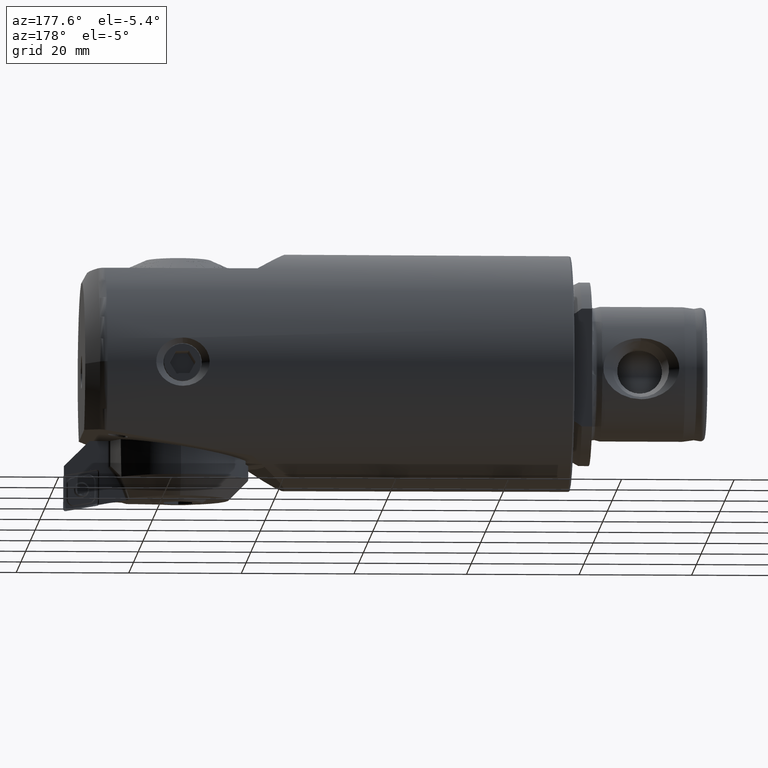
[diagram: clean part render]
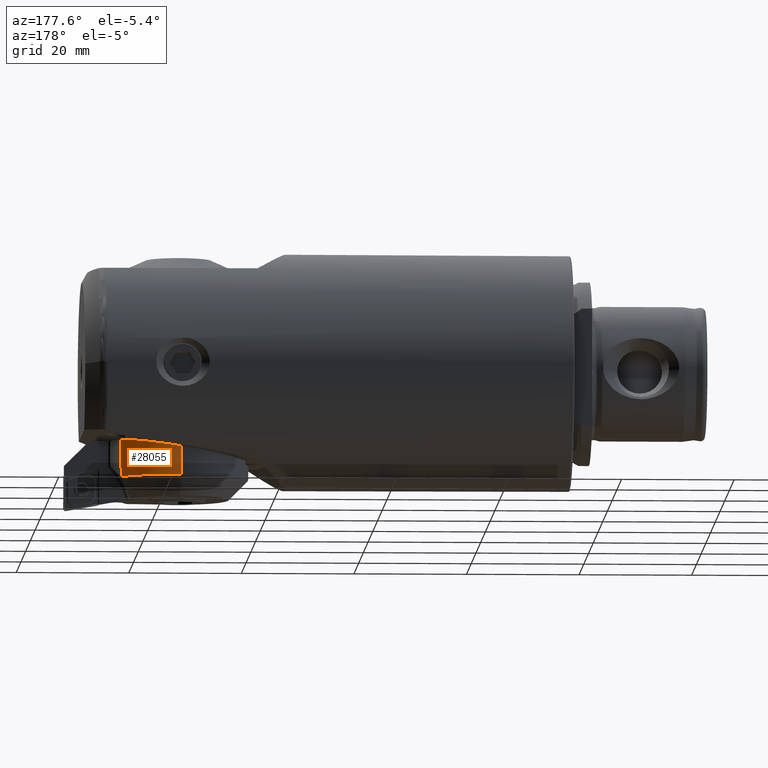
[diagram: same view with one face highlighted and labeled with its STEP entity id]
A machine part, auxiliary view. The second image highlights one B-rep face of the part: STEP entity #28055.
In plain terms, the highlighted cylindrical surface (partial cylindrical patch) has radius 12.5 mm, axis along (-0, 0, 1).
Its self-contained STEP definition (entity closure, byte-faithful):
#138 = CARTESIAN_POINT ( 'NONE',  ( -9.000000000000001800, 0.0000000000000000000, 1.734723475976807100E-015 ) ) ;
#207 = B_SPLINE_CURVE_WITH_KNOTS ( 'NONE', 3,
 ( #4726, #13003, #7567, #26863 ),
 .UNSPECIFIED., .F., .F.,
 ( 4, 4 ),
 ( 0.003016406854774080600, 0.003657953614360639000 ),
 .UNSPECIFIED. ) ;
#4156 = VERTEX_POINT ( 'NONE', #21476 ) ;
#4580 = ORIENTED_EDGE ( 'NONE', *, *, #13086, .T. ) ;
#4726 = CARTESIAN_POINT ( 'NONE',  ( -3.537315972132262700, 10.37328591786497400, 6.974592408608901700 ) ) ;
#6395 = CARTESIAN_POINT ( 'NONE',  ( 2.213373318069829000, 4.315877321109193000, 12.50000000000000500 ) ) ;
#6522 = CARTESIAN_POINT ( 'NONE',  ( 1.529805504056619900, -2.857541537855552400E-016, 12.50000000000000900 ) ) ;
#6972 = CARTESIAN_POINT ( 'NONE',  ( -9.000000000000001800, 7.957186232157969500E-017, 12.50000000000000900 ) ) ;
#7189 = LINE ( 'NONE', #6972, #35671 ) ;
#7233 = ORIENTED_EDGE ( 'NONE', *, *, #28554, .T. ) ;
#7354 = CARTESIAN_POINT ( 'NONE',  ( -3.537315972132262700, 10.37328591786497400, 6.974592408608901700 ) ) ;
#7567 = CARTESIAN_POINT ( 'NONE',  ( -3.500000000000007100, 10.13005970095097500, 7.326587065398706000 ) ) ;
#7791 = FACE_OUTER_BOUND ( 'NONE', #21429, .T. ) ;
#9312 = CARTESIAN_POINT ( 'NONE',  ( 2.814446084305933600, 8.110901409362490700, 10.44461944632098100 ) ) ;
#9815 = CARTESIAN_POINT ( 'NONE',  ( -1.251282425858682300, 10.40555228624945100, 6.926602756285918300 ) ) ;
#10692 = ORIENTED_EDGE ( 'NONE', *, *, #23012, .T. ) ;
#12446 = ORIENTED_EDGE ( 'NONE', *, *, #31103, .T. ) ;
#12783 = EDGE_CURVE ( 'NONE', #18001, #25356, #20601, .T. ) ;
#13003 = CARTESIAN_POINT ( 'NONE',  ( -3.512695171314378600, 10.25438928502884800, 7.151426938116013200 ) ) ;
#13086 = EDGE_CURVE ( 'NONE', #18001, #4156, #7189, .T. ) ;
#13265 = DIRECTION ( 'NONE',  ( -1.000000000000000000, 3.469446951953600600E-017, 6.720577169422240000E-017 ) ) ;
#14196 = DIRECTION ( 'NONE',  ( 1.000000000000000000, -3.469446951953600600E-017, -6.720577169422240000E-017 ) ) ;
#14752 = CARTESIAN_POINT ( 'NONE',  ( 3.187945214944809500, 10.46908211116362400, 6.829957521808888800 ) ) ;
#15329 = DIRECTION ( 'NONE',  ( 1.000000000000000000, -3.469446951953600600E-017, -6.720577169422240000E-017 ) ) ;
#15425 = AXIS2_PLACEMENT_3D ( 'NONE', #29771, #13265, #32533 ) ;
#17576 = ORIENTED_EDGE ( 'NONE', *, *, #12783, .F. ) ;
#18001 = VERTEX_POINT ( 'NONE', #22811 ) ;
#18021 = CARTESIAN_POINT ( 'NONE',  ( 3.187945214944809500, 10.46908211116362400, 6.829957521808888800 ) ) ;
#18063 = VERTEX_POINT ( 'NONE', #14752 ) ;
#20601 = CIRCLE ( 'NONE', #15425, 12.50000000000000900 ) ;
#20815 = CARTESIAN_POINT ( 'NONE',  ( 0.9905072872087091800, 10.43748486324743800, 6.878390353472204000 ) ) ;
#21429 = EDGE_LOOP ( 'NONE', ( #17576, #4580, #7233, #10692, #12446 ) ) ;
#21476 = CARTESIAN_POINT ( 'NONE',  ( 1.529805504056619900, -2.857541537855552400E-016, 12.50000000000000900 ) ) ;
#22811 = CARTESIAN_POINT ( 'NONE',  ( -3.499999999999995100, -2.266177468111158100E-016, 12.50000000000000500 ) ) ;
#23012 = EDGE_CURVE ( 'NONE', #18063, #26276, #23930, .T. ) ;
#23930 =( BOUNDED_CURVE ( )  B_SPLINE_CURVE ( 3, ( #18021, #20815, #9815, #29117 ),
 .UNSPECIFIED., .F., .F. ) 
 B_SPLINE_CURVE_WITH_KNOTS ( ( 4, 4 ),
 ( 0.3307851457375243200, 0.3446638532795771600 ),
 .UNSPECIFIED. ) 
 CURVE ( )  GEOMETRIC_REPRESENTATION_ITEM ( )  RATIONAL_B_SPLINE_CURVE ( ( 1.000000000000000000, 0.9999839485208262800, 0.9999839485208262800, 1.000000000000000000 ) ) 
 REPRESENTATION_ITEM ( '' )  );
#25356 = VERTEX_POINT ( 'NONE', #35879 ) ;
#25622 = AXIS2_PLACEMENT_3D ( 'NONE', #138, #14196, #27915 ) ;
#26276 = VERTEX_POINT ( 'NONE', #7354 ) ;
#26863 = CARTESIAN_POINT ( 'NONE',  ( -3.499999999999999600, 9.999999999999994700, 7.500000000000000000 ) ) ;
#27915 = DIRECTION ( 'NONE',  ( 0.0000000000000000000, 1.160989309290089500E-016, -1.000000000000000000 ) ) ;
#27970 =( BOUNDED_CURVE ( )  B_SPLINE_CURVE ( 3, ( #6522, #6395, #9312, #28602 ),
 .UNSPECIFIED., .F., .F. ) 
 B_SPLINE_CURVE_WITH_KNOTS ( ( 4, 4 ),
 ( 4.712388980384689700, 5.705129566457062900 ),
 .UNSPECIFIED. ) 
 CURVE ( )  GEOMETRIC_REPRESENTATION_ITEM ( )  RATIONAL_B_SPLINE_CURVE ( ( 1.000000000000000000, 0.9195446342109285800, 0.9195446342109285800, 1.000000000000000000 ) ) 
 REPRESENTATION_ITEM ( '' )  );
#28055 = ADVANCED_FACE ( 'NONE', ( #7791 ), #28936, .T. ) ;
#28554 = EDGE_CURVE ( 'NONE', #4156, #18063, #27970, .T. ) ;
#28602 = CARTESIAN_POINT ( 'NONE',  ( 3.187945214944809500, 10.46908211116362400, 6.829957521808888800 ) ) ;
#28936 = CYLINDRICAL_SURFACE ( 'NONE', #25622, 12.50000000000000700 ) ;
#29117 = CARTESIAN_POINT ( 'NONE',  ( -3.537315972132262700, 10.37328591786497400, 6.974592408608901700 ) ) ;
#29771 = CARTESIAN_POINT ( 'NONE',  ( -3.499999999999996000, 0.0000000000000000000, 1.734723475976807100E-015 ) ) ;
#31103 = EDGE_CURVE ( 'NONE', #26276, #25356, #207, .T. ) ;
#32533 = DIRECTION ( 'NONE',  ( -6.938893903907223400E-017, -1.160989309290089500E-016, 1.000000000000000000 ) ) ;
#35671 = VECTOR ( 'NONE', #15329, 1000.000000000000000 ) ;
#35879 = CARTESIAN_POINT ( 'NONE',  ( -3.499999999999999600, 9.999999999999994700, 7.500000000000000000 ) ) ;